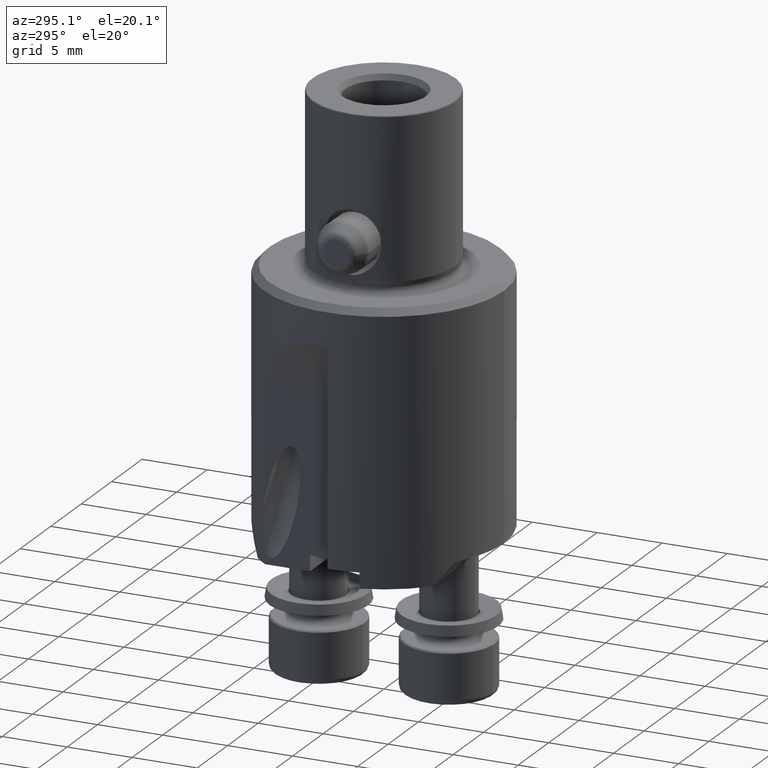
[diagram: clean part render]
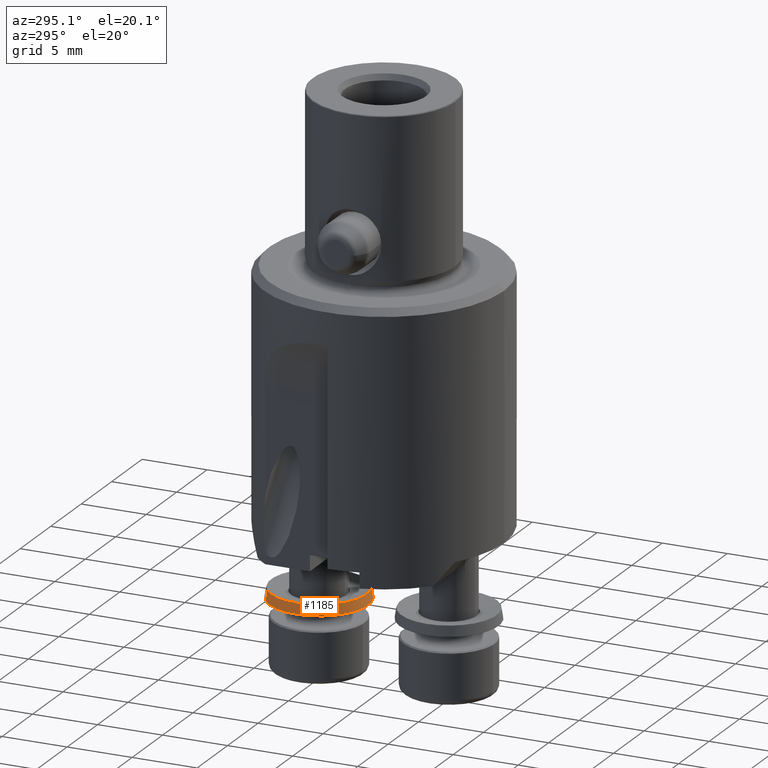
[diagram: same view with one face highlighted and labeled with its STEP entity id]
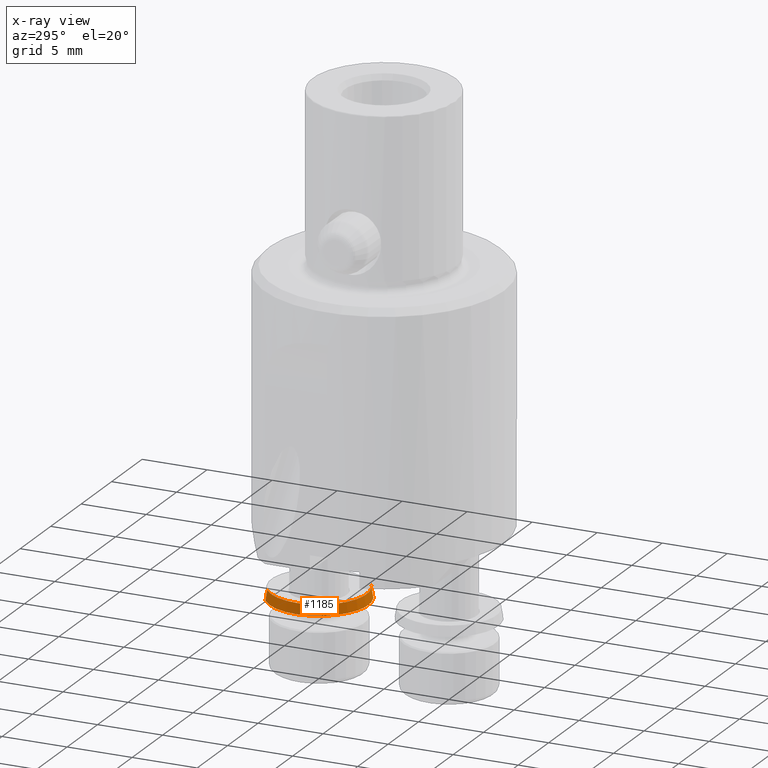
[diagram: x-ray of the same camera — body ghosted, the highlighted face saturated]
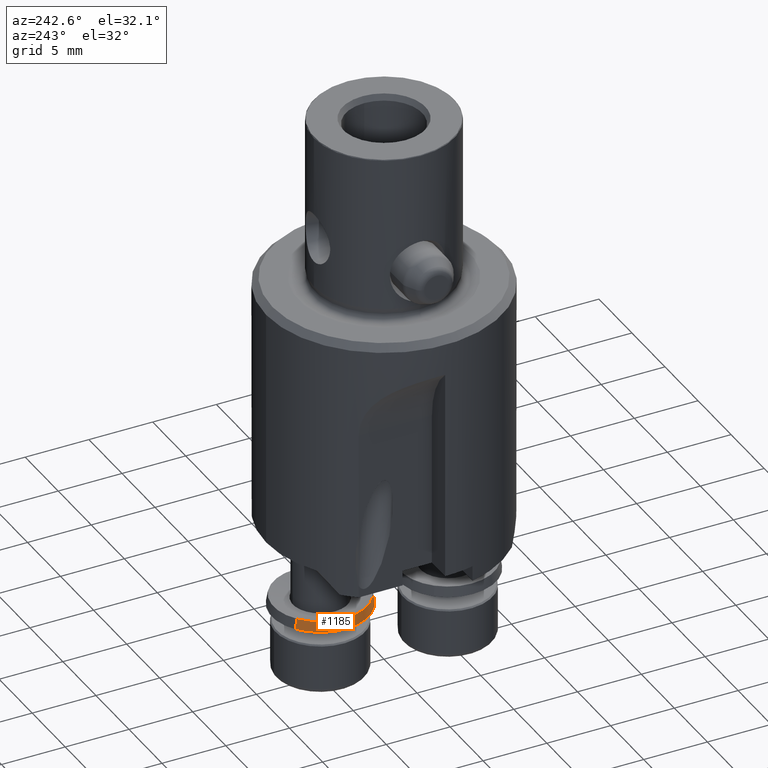
[diagram: same view with one face highlighted and labeled with its STEP entity id]
A machine part, auxiliary view. The second image highlights one B-rep face of the part: STEP entity #1185.
The next image is the same camera in x-ray: the body ghosted, the highlighted face saturated — about 0% of this face is hidden behind the body in this view.
A second angle (auxiliary view) of the same face is appended — the face is thin or edge-on in the first view.
In plain terms, the highlighted conical surface has half-angle 9.808 deg.
Its self-contained STEP definition (entity closure, byte-faithful):
#1133=EDGE_CURVE('NONE',#2225,#1669,#3280,.T.);
#1185=ADVANCED_FACE('NONE',(#3342),#3343,.T.);
#1669=VERTEX_POINT('NONE',#3892);
#2225=VERTEX_POINT('NONE',#4516);
#2253=EDGE_CURVE('NONE',#2645,#1669,#4544,.T.);
#2573=EDGE_CURVE('NONE',#2887,#2645,#4904,.T.);
#2645=VERTEX_POINT('NONE',#4986);
#2807=EDGE_CURVE('NONE',#2887,#2225,#5162,.T.);
#2887=VERTEX_POINT('NONE',#5250);
#3280=LINE('',#5685,#5686);
#3342=FACE_OUTER_BOUND('',#5775,.T.);
#3343=CONICAL_SURFACE('',#5776,3.66371633305227,0.171189501525084);
#3892=CARTESIAN_POINT('',(2.22618670674042,1.92037457687916,-25.4383062616289));
#4516=CARTESIAN_POINT('',(2.14634647313388,2.03082264148136,-24.65));
#4544=CIRCLE('',#7633,3.8);
#4904=LINE('',#8273,#8274);
#4986=CARTESIAN_POINT('',(-2.22618670674043,8.07962542312084,-25.4383062616289));
#5162=CIRCLE('',#8650,3.66371633305227);
#5250=CARTESIAN_POINT('',(-2.14634647313388,7.96917735851864,-24.65));
#5685=CARTESIAN_POINT('',(2.14634647313388,2.03082264148136,-24.65));
#5686=VECTOR('',#9376,1000.0);
#5775=EDGE_LOOP('',(#9472,#9473,#9474,#9475));
#5776=AXIS2_PLACEMENT_3D('',#9476,#9477,#9478);
#7633=AXIS2_PLACEMENT_3D('',#10994,#10995,#10996);
#8273=CARTESIAN_POINT('',(-2.14634647313388,7.96917735851864,-24.65));
#8274=VECTOR('',#11461,1000.0);
#8650=AXIS2_PLACEMENT_3D('',#11766,#11767,#11768);
#9376=DIRECTION('',(0.0998002920081804,-0.138060080752748,-0.985382827036085));
#9472=ORIENTED_EDGE('',*,*,#2807,.F.);
#9473=ORIENTED_EDGE('',*,*,#2573,.T.);
#9474=ORIENTED_EDGE('',*,*,#2253,.T.);
#9475=ORIENTED_EDGE('',*,*,#1133,.F.);
#9476=CARTESIAN_POINT('',(-5.33630756770209E-017,5.0,-24.65));
#9477=DIRECTION('',(-2.77555756156292E-017,-5.61989498833234E-031,-1.0));
#9478=DIRECTION('',(0.585838607036954,-0.810427742926537,-1.62602877561686E-017));
#10994=CARTESIAN_POINT('',(-7.52429697299349E-017,5.0,-25.4383062616289));
#10995=DIRECTION('',(2.77555756156292E-017,5.59960130091092E-031,1.0));
#10996=DIRECTION('',(-0.585838607036954,0.810427742926537,1.62602877561686E-017));
#11461=DIRECTION('',(-0.0998002920081805,0.138060080752748,-0.985382827036085));
#11766=CARTESIAN_POINT('',(-5.33630756770209E-017,5.0,-24.65));
#11767=DIRECTION('',(2.77555756156292E-017,5.61989498833234E-031,1.0));
#11768=DIRECTION('',(-0.585838607036954,0.810427742926537,1.62602877561686E-017));